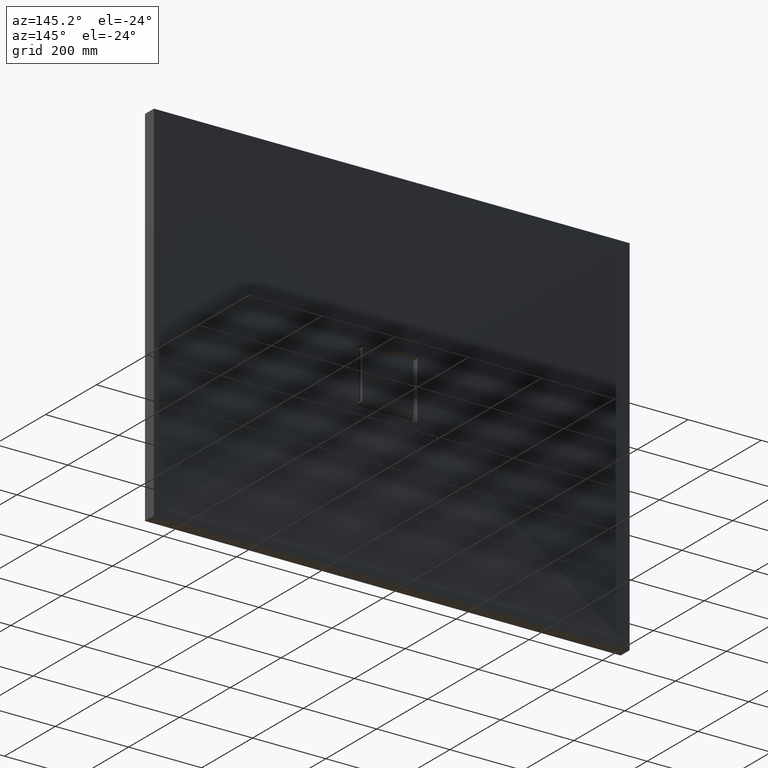
[diagram: clean part render]
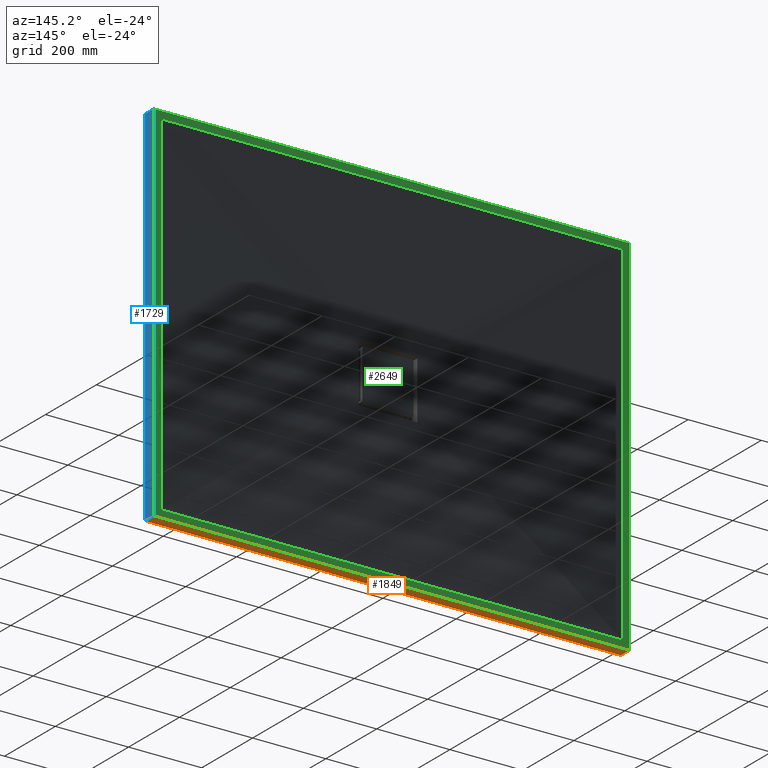
[diagram: same view with three faces highlighted in distinct colors, each labeled with its STEP entity id]
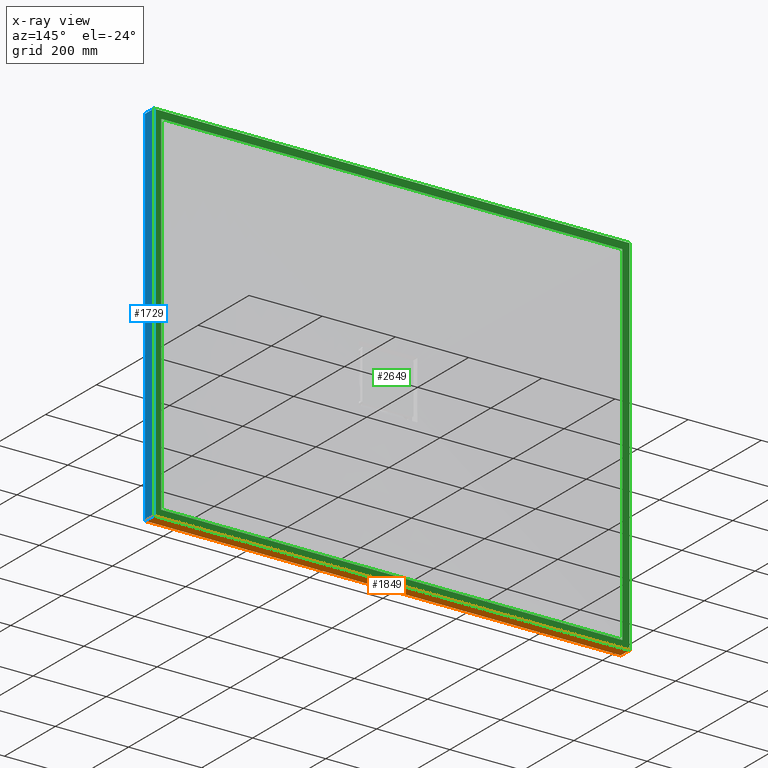
[diagram: x-ray of the same camera — body ghosted, the three highlighted faces saturated]
A machine part, auxiliary view with three faces highlighted in distinct colors.
The next image is the same camera in x-ray (body ghosted, the three faces saturated) — at least one of them is partly hidden behind the body in this view.
Their STEP definitions:

[orange] entity #1849 — the highlighted planar face has unit normal (0, 0, 1).
#3 = DIRECTION ( 'NONE',  ( -0.0000000000000000000, -1.000000000000000000, -0.0000000000000000000 ) ) ;
#5 = VECTOR ( 'NONE', #2438, 1000.000000000000000 ) ;
#19 = VECTOR ( 'NONE', #2789, 1000.000000000000000 ) ;
#40 = LINE ( 'NONE', #2599, #5 ) ;
#327 = CARTESIAN_POINT ( 'NONE',  ( -650.0000000000000000, 35.00000000000000000, -499.9999999999997700 ) ) ;
#328 = FACE_OUTER_BOUND ( 'NONE', #2042, .T. ) ;
#349 = CARTESIAN_POINT ( 'NONE',  ( 650.0000000000000000, 0.0000000000000000000, -499.9999999999997700 ) ) ;
#593 = VERTEX_POINT ( 'NONE', #349 ) ;
#645 = ORIENTED_EDGE ( 'NONE', *, *, #2845, .F. ) ;
#791 = ORIENTED_EDGE ( 'NONE', *, *, #2737, .F. ) ;
#839 = PLANE ( 'NONE',  #2414 ) ;
#890 = VERTEX_POINT ( 'NONE', #2252 ) ;
#962 = ORIENTED_EDGE ( 'NONE', *, *, #1442, .T. ) ;
#1168 = EDGE_CURVE ( 'NONE', #593, #2823, #3189, .T. ) ;
#1202 = DIRECTION ( 'NONE',  ( 0.0000000000000000000, 0.0000000000000000000, 1.000000000000000000 ) ) ;
#1235 = ORIENTED_EDGE ( 'NONE', *, *, #1168, .T. ) ;
#1442 = EDGE_CURVE ( 'NONE', #890, #593, #3008, .T. ) ;
#1849 = ADVANCED_FACE ( 'NONE', ( #328 ), #839, .F. ) ;
#2042 = EDGE_LOOP ( 'NONE', ( #1235, #791, #645, #962 ) ) ;
#2096 = LINE ( 'NONE', #3088, #3110 ) ;
#2119 = CARTESIAN_POINT ( 'NONE',  ( -650.0000000000000000, 35.00000000000000000, -499.9999999999997700 ) ) ;
#2252 = CARTESIAN_POINT ( 'NONE',  ( 650.0000000000000000, 35.00000000000000000, -499.9999999999997700 ) ) ;
#2414 = AXIS2_PLACEMENT_3D ( 'NONE', #2119, #1202, #2684 ) ;
#2438 = DIRECTION ( 'NONE',  ( -0.0000000000000000000, -1.000000000000000000, -0.0000000000000000000 ) ) ;
#2599 = CARTESIAN_POINT ( 'NONE',  ( -650.0000000000000000, 35.00000000000000000, -499.9999999999997700 ) ) ;
#2684 = DIRECTION ( 'NONE',  ( 1.000000000000000000, 0.0000000000000000000, -0.0000000000000000000 ) ) ;
#2737 = EDGE_CURVE ( 'NONE', #3219, #2823, #40, .T. ) ;
#2789 = DIRECTION ( 'NONE',  ( -1.000000000000000000, -0.0000000000000000000, -0.0000000000000000000 ) ) ;
#2823 = VERTEX_POINT ( 'NONE', #3250 ) ;
#2838 = CARTESIAN_POINT ( 'NONE',  ( -650.0000000000000000, 0.0000000000000000000, -499.9999999999997700 ) ) ;
#2845 = EDGE_CURVE ( 'NONE', #890, #3219, #2096, .T. ) ;
#2883 = VECTOR ( 'NONE', #3, 1000.000000000000000 ) ;
#3008 = LINE ( 'NONE', #3023, #2883 ) ;
#3023 = CARTESIAN_POINT ( 'NONE',  ( 650.0000000000000000, 35.00000000000000000, -499.9999999999997700 ) ) ;
#3040 = DIRECTION ( 'NONE',  ( -1.000000000000000000, -0.0000000000000000000, -0.0000000000000000000 ) ) ;
#3088 = CARTESIAN_POINT ( 'NONE',  ( -650.0000000000000000, 35.00000000000000000, -499.9999999999997700 ) ) ;
#3110 = VECTOR ( 'NONE', #3040, 1000.000000000000000 ) ;
#3189 = LINE ( 'NONE', #2838, #19 ) ;
#3219 = VERTEX_POINT ( 'NONE', #327 ) ;
#3250 = CARTESIAN_POINT ( 'NONE',  ( -650.0000000000000000, 0.0000000000000000000, -499.9999999999997700 ) ) ;

[blue] entity #1729 — the highlighted planar face has unit normal (-1, 0, 0).
#3 = DIRECTION ( 'NONE',  ( -0.0000000000000000000, -1.000000000000000000, -0.0000000000000000000 ) ) ;
#342 = CARTESIAN_POINT ( 'NONE',  ( 650.0000000000000000, 35.00000000000000000, -499.9999999999997700 ) ) ;
#349 = CARTESIAN_POINT ( 'NONE',  ( 650.0000000000000000, 0.0000000000000000000, -499.9999999999997700 ) ) ;
#368 = CARTESIAN_POINT ( 'NONE',  ( 650.0000000000000000, 0.0000000000000000000, -499.9999999999997700 ) ) ;
#382 = CARTESIAN_POINT ( 'NONE',  ( 650.0000000000003400, 35.00000000000000000, 500.0000000000002300 ) ) ;
#390 = DIRECTION ( 'NONE',  ( -3.330669073875469600E-016, -0.0000000000000000000, -1.000000000000000000 ) ) ;
#402 = PLANE ( 'NONE',  #2538 ) ;
#422 = DIRECTION ( 'NONE',  ( 3.330669073875469600E-016, 0.0000000000000000000, 1.000000000000000000 ) ) ;
#477 = DIRECTION ( 'NONE',  ( -1.000000000000000000, 0.0000000000000000000, 3.330669073875469600E-016 ) ) ;
#593 = VERTEX_POINT ( 'NONE', #349 ) ;
#701 = CARTESIAN_POINT ( 'NONE',  ( 650.0000000000003400, 35.00000000000000000, 500.0000000000002300 ) ) ;
#703 = CARTESIAN_POINT ( 'NONE',  ( 650.0000000000003400, 0.0000000000000000000, 500.0000000000002300 ) ) ;
#890 = VERTEX_POINT ( 'NONE', #2252 ) ;
#929 = ORIENTED_EDGE ( 'NONE', *, *, #2602, .T. ) ;
#1016 = VERTEX_POINT ( 'NONE', #382 ) ;
#1092 = ORIENTED_EDGE ( 'NONE', *, *, #2527, .F. ) ;
#1099 = ORIENTED_EDGE ( 'NONE', *, *, #1442, .F. ) ;
#1122 = ORIENTED_EDGE ( 'NONE', *, *, #3161, .T. ) ;
#1169 = EDGE_LOOP ( 'NONE', ( #1122, #1099, #1092, #929 ) ) ;
#1261 = FACE_OUTER_BOUND ( 'NONE', #1169, .T. ) ;
#1442 = EDGE_CURVE ( 'NONE', #890, #593, #3008, .T. ) ;
#1586 = VECTOR ( 'NONE', #1963, 1000.000000000000000 ) ;
#1729 = ADVANCED_FACE ( 'NONE', ( #1261 ), #402, .F. ) ;
#1963 = DIRECTION ( 'NONE',  ( -0.0000000000000000000, -1.000000000000000000, -0.0000000000000000000 ) ) ;
#2039 = CARTESIAN_POINT ( 'NONE',  ( 650.0000000000000000, 35.00000000000000000, -499.9999999999997700 ) ) ;
#2093 = DIRECTION ( 'NONE',  ( -3.330669073875469600E-016, -0.0000000000000000000, -1.000000000000000000 ) ) ;
#2164 = LINE ( 'NONE', #701, #1586 ) ;
#2208 = LINE ( 'NONE', #368, #3022 ) ;
#2252 = CARTESIAN_POINT ( 'NONE',  ( 650.0000000000000000, 35.00000000000000000, -499.9999999999997700 ) ) ;
#2297 = VECTOR ( 'NONE', #2093, 1000.000000000000000 ) ;
#2482 = LINE ( 'NONE', #2039, #2297 ) ;
#2527 = EDGE_CURVE ( 'NONE', #1016, #890, #2482, .T. ) ;
#2538 = AXIS2_PLACEMENT_3D ( 'NONE', #342, #477, #422 ) ;
#2602 = EDGE_CURVE ( 'NONE', #1016, #3084, #2164, .T. ) ;
#2883 = VECTOR ( 'NONE', #3, 1000.000000000000000 ) ;
#3008 = LINE ( 'NONE', #3023, #2883 ) ;
#3022 = VECTOR ( 'NONE', #390, 1000.000000000000000 ) ;
#3023 = CARTESIAN_POINT ( 'NONE',  ( 650.0000000000000000, 35.00000000000000000, -499.9999999999997700 ) ) ;
#3084 = VERTEX_POINT ( 'NONE', #703 ) ;
#3161 = EDGE_CURVE ( 'NONE', #3084, #593, #2208, .T. ) ;

[green] entity #2649 — the highlighted planar face has unit normal (0, 1, 0).
#24 = DIRECTION ( 'NONE',  ( -3.469446951953614200E-016, 0.0000000000000000000, -1.000000000000000000 ) ) ;
#69 = VERTEX_POINT ( 'NONE', #1480 ) ;
#90 = CARTESIAN_POINT ( 'NONE',  ( 630.0000000000003400, 35.00000000000000000, 480.0000000000002300 ) ) ;
#168 = CARTESIAN_POINT ( 'NONE',  ( -629.9999999999998900, 35.00000000000000000, 480.0000000000002300 ) ) ;
#233 = LINE ( 'NONE', #447, #2935 ) ;
#239 = ORIENTED_EDGE ( 'NONE', *, *, #2803, .F. ) ;
#323 = VECTOR ( 'NONE', #1439, 1000.000000000000000 ) ;
#327 = CARTESIAN_POINT ( 'NONE',  ( -650.0000000000000000, 35.00000000000000000, -499.9999999999997700 ) ) ;
#369 = VECTOR ( 'NONE', #2072, 1000.000000000000000 ) ;
#382 = CARTESIAN_POINT ( 'NONE',  ( 650.0000000000003400, 35.00000000000000000, 500.0000000000002300 ) ) ;
#438 = LINE ( 'NONE', #2230, #323 ) ;
#443 = VERTEX_POINT ( 'NONE', #168 ) ;
#447 = CARTESIAN_POINT ( 'NONE',  ( -629.9999999999998900, 35.00000000000000000, 480.0000000000002300 ) ) ;
#513 = VECTOR ( 'NONE', #1532, 1000.000000000000000 ) ;
#542 = LINE ( 'NONE', #2976, #369 ) ;
#555 = CARTESIAN_POINT ( 'NONE',  ( -630.0000000000000000, 35.00000000000000000, -479.9999999999997700 ) ) ;
#568 = DIRECTION ( 'NONE',  ( -1.000000000000000000, 0.0000000000000000000, 0.0000000000000000000 ) ) ;
#614 = EDGE_CURVE ( 'NONE', #69, #951, #2820, .T. ) ;
#660 = EDGE_CURVE ( 'NONE', #443, #794, #233, .T. ) ;
#794 = VERTEX_POINT ( 'NONE', #2510 ) ;
#847 = LINE ( 'NONE', #1400, #513 ) ;
#879 = ORIENTED_EDGE ( 'NONE', *, *, #660, .F. ) ;
#890 = VERTEX_POINT ( 'NONE', #2252 ) ;
#951 = VERTEX_POINT ( 'NONE', #555 ) ;
#1008 = CARTESIAN_POINT ( 'NONE',  ( 630.0000000000000000, 35.00000000000000000, -479.9999999999997700 ) ) ;
#1016 = VERTEX_POINT ( 'NONE', #382 ) ;
#1023 = FACE_BOUND ( 'NONE', #1127, .T. ) ;
#1127 = EDGE_LOOP ( 'NONE', ( #1133, #239, #879, #2009 ) ) ;
#1133 = ORIENTED_EDGE ( 'NONE', *, *, #614, .F. ) ;
#1156 = FACE_OUTER_BOUND ( 'NONE', #2120, .T. ) ;
#1164 = VERTEX_POINT ( 'NONE', #1874 ) ;
#1173 = ORIENTED_EDGE ( 'NONE', *, *, #2845, .T. ) ;
#1328 = EDGE_CURVE ( 'NONE', #1164, #1016, #847, .T. ) ;
#1400 = CARTESIAN_POINT ( 'NONE',  ( -649.9999999999998900, 35.00000000000000000, 500.0000000000002300 ) ) ;
#1439 = DIRECTION ( 'NONE',  ( 1.156482317317871500E-016, 0.0000000000000000000, 1.000000000000000000 ) ) ;
#1480 = CARTESIAN_POINT ( 'NONE',  ( 630.0000000000000000, 35.00000000000000000, -479.9999999999997700 ) ) ;
#1519 = ORIENTED_EDGE ( 'NONE', *, *, #2214, .T. ) ;
#1532 = DIRECTION ( 'NONE',  ( 1.000000000000000000, 0.0000000000000000000, 0.0000000000000000000 ) ) ;
#1541 = ORIENTED_EDGE ( 'NONE', *, *, #2527, .T. ) ;
#1622 = VECTOR ( 'NONE', #24, 1000.000000000000000 ) ;
#1874 = CARTESIAN_POINT ( 'NONE',  ( -649.9999999999998900, 35.00000000000000000, 500.0000000000002300 ) ) ;
#1962 = AXIS2_PLACEMENT_3D ( 'NONE', #2559, #3190, #2660 ) ;
#2009 = ORIENTED_EDGE ( 'NONE', *, *, #2216, .F. ) ;
#2039 = CARTESIAN_POINT ( 'NONE',  ( 650.0000000000000000, 35.00000000000000000, -499.9999999999997700 ) ) ;
#2072 = DIRECTION ( 'NONE',  ( 1.110223024625156500E-016, 0.0000000000000000000, 1.000000000000000000 ) ) ;
#2093 = DIRECTION ( 'NONE',  ( -3.330669073875469600E-016, -0.0000000000000000000, -1.000000000000000000 ) ) ;
#2096 = LINE ( 'NONE', #3088, #3110 ) ;
#2120 = EDGE_LOOP ( 'NONE', ( #1519, #2136, #1541, #1173 ) ) ;
#2128 = LINE ( 'NONE', #90, #1622 ) ;
#2136 = ORIENTED_EDGE ( 'NONE', *, *, #1328, .T. ) ;
#2214 = EDGE_CURVE ( 'NONE', #3219, #1164, #542, .T. ) ;
#2216 = EDGE_CURVE ( 'NONE', #951, #443, #438, .T. ) ;
#2230 = CARTESIAN_POINT ( 'NONE',  ( -630.0000000000000000, 35.00000000000000000, -479.9999999999997700 ) ) ;
#2252 = CARTESIAN_POINT ( 'NONE',  ( 650.0000000000000000, 35.00000000000000000, -499.9999999999997700 ) ) ;
#2297 = VECTOR ( 'NONE', #2093, 1000.000000000000000 ) ;
#2376 = DIRECTION ( 'NONE',  ( 1.000000000000000000, 0.0000000000000000000, 0.0000000000000000000 ) ) ;
#2482 = LINE ( 'NONE', #2039, #2297 ) ;
#2510 = CARTESIAN_POINT ( 'NONE',  ( 630.0000000000003400, 35.00000000000000000, 480.0000000000002300 ) ) ;
#2527 = EDGE_CURVE ( 'NONE', #1016, #890, #2482, .T. ) ;
#2559 = CARTESIAN_POINT ( 'NONE',  ( -649.9999999999998900, 35.00000000000000000, 500.0000000000002300 ) ) ;
#2649 = ADVANCED_FACE ( 'NONE', ( #1023, #1156 ), #3225, .T. ) ;
#2660 = DIRECTION ( 'NONE',  ( 0.0000000000000000000, -0.0000000000000000000, 1.000000000000000000 ) ) ;
#2803 = EDGE_CURVE ( 'NONE', #794, #69, #2128, .T. ) ;
#2820 = LINE ( 'NONE', #1008, #3020 ) ;
#2845 = EDGE_CURVE ( 'NONE', #890, #3219, #2096, .T. ) ;
#2935 = VECTOR ( 'NONE', #2376, 1000.000000000000000 ) ;
#2976 = CARTESIAN_POINT ( 'NONE',  ( -650.0000000000000000, 35.00000000000000000, -499.9999999999997700 ) ) ;
#3020 = VECTOR ( 'NONE', #568, 1000.000000000000000 ) ;
#3040 = DIRECTION ( 'NONE',  ( -1.000000000000000000, -0.0000000000000000000, -0.0000000000000000000 ) ) ;
#3088 = CARTESIAN_POINT ( 'NONE',  ( -650.0000000000000000, 35.00000000000000000, -499.9999999999997700 ) ) ;
#3110 = VECTOR ( 'NONE', #3040, 1000.000000000000000 ) ;
#3190 = DIRECTION ( 'NONE',  ( 0.0000000000000000000, 1.000000000000000000, 0.0000000000000000000 ) ) ;
#3219 = VERTEX_POINT ( 'NONE', #327 ) ;
#3225 = PLANE ( 'NONE',  #1962 ) ;